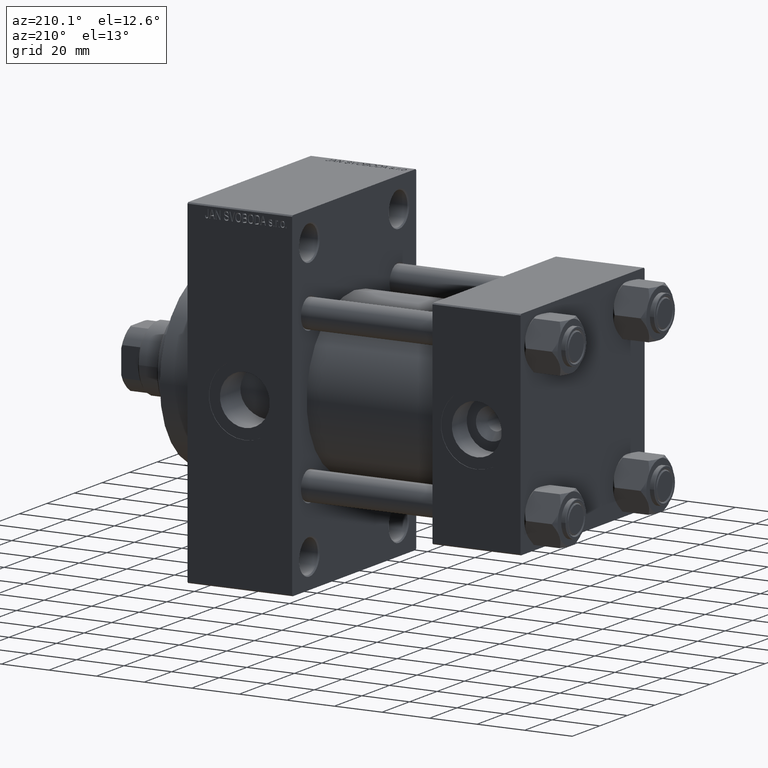
[diagram: clean part render]
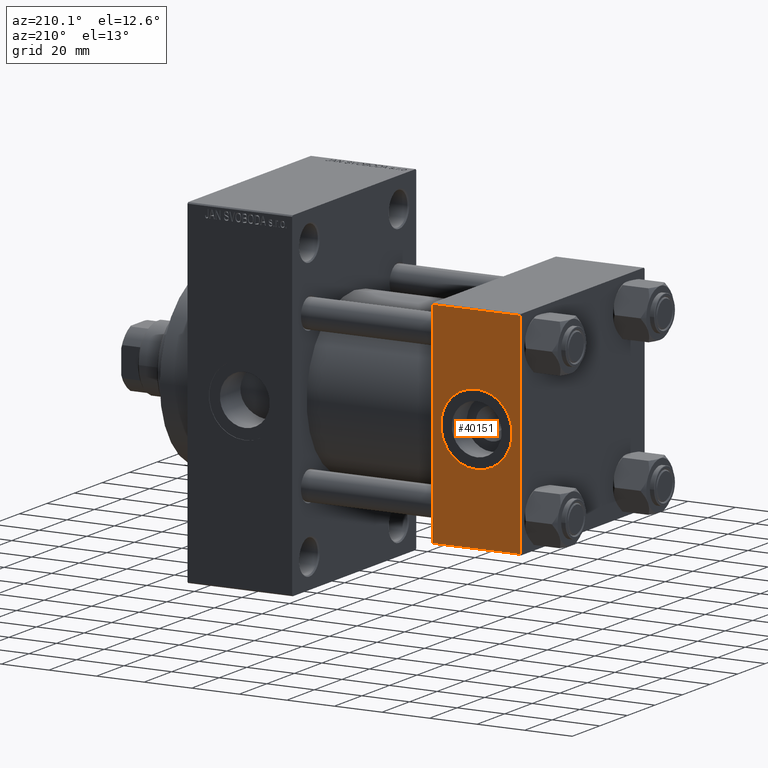
[diagram: same view with one face highlighted and labeled with its STEP entity id]
A machine part, auxiliary view. The second image highlights one B-rep face of the part: STEP entity #40151.
In plain terms, the highlighted planar face has unit normal (0, 1, 0).
Its self-contained STEP definition (entity closure, byte-faithful):
#344 = DIRECTION ( 'NONE',  ( -0.000000000000000000, 1.000000000000000000, 0.000000000000000000 ) ) ;
#749 = ORIENTED_EDGE ( 'NONE', *, *, #7182, .F. ) ;
#1436 = ORIENTED_EDGE ( 'NONE', *, *, #26943, .T. ) ;
#3136 = DIRECTION ( 'NONE',  ( 0.000000000000000000, 1.000000000000000000, 0.000000000000000000 ) ) ;
#3696 = VECTOR ( 'NONE', #26767, 1000.000000000000000 ) ;
#4540 = CARTESIAN_POINT ( 'NONE',  ( 37.00000000000000000, 44.99999999999998579, 45.00000000000001421 ) ) ;
#4918 = EDGE_CURVE ( 'NONE', #5685, #24752, #40130, .T. ) ;
#5167 = CIRCLE ( 'NONE', #39518, 15.00000000000000178 ) ;
#5215 = CARTESIAN_POINT ( 'NONE',  ( 0.000000000000000000, 44.99999999999998579, 44.50000000000001421 ) ) ;
#5685 = VERTEX_POINT ( 'NONE', #21297 ) ;
#6550 = DIRECTION ( 'NONE',  ( -1.000000000000000000, 0.000000000000000000, 0.000000000000000000 ) ) ;
#7042 = CARTESIAN_POINT ( 'NONE',  ( 37.00000000000000000, 44.99999999999998579, -44.49999999999998579 ) ) ;
#7182 = EDGE_CURVE ( 'NONE', #30749, #28216, #34270, .T. ) ;
#7786 = LINE ( 'NONE', #22523, #3696 ) ;
#8589 = DIRECTION ( 'NONE',  ( 0.000000000000000000, -0.000000000000000000, 1.000000000000000000 ) ) ;
#9556 = EDGE_CURVE ( 'NONE', #24752, #5685, #5167, .T. ) ;
#9661 = EDGE_LOOP ( 'NONE', ( #39809, #13189 ) ) ;
#10395 = EDGE_LOOP ( 'NONE', ( #43422, #41041, #749, #1436 ) ) ;
#13189 = ORIENTED_EDGE ( 'NONE', *, *, #9556, .F. ) ;
#14534 = EDGE_CURVE ( 'NONE', #41920, #28216, #44575, .T. ) ;
#14535 = CARTESIAN_POINT ( 'NONE',  ( 0.000000000000000000, 44.99999999999998579, 45.00000000000001421 ) ) ;
#14884 = CARTESIAN_POINT ( 'NONE',  ( 18.50000000000000000, 44.99999999999998579, 0.000000000000000000 ) ) ;
#21297 = CARTESIAN_POINT ( 'NONE',  ( 18.50000000000000000, 44.99999999999998579, 15.00000000000000178 ) ) ;
#22523 = CARTESIAN_POINT ( 'NONE',  ( 37.00000000000000000, 44.99999999999998579, 44.50000000000001421 ) ) ;
#23087 = CARTESIAN_POINT ( 'NONE',  ( 37.00000000000000000, 44.99999999999998579, 45.00000000000001421 ) ) ;
#24356 = VECTOR ( 'NONE', #6550, 1000.000000000000000 ) ;
#24562 = CARTESIAN_POINT ( 'NONE',  ( 0.000000000000000000, 44.99999999999998579, -44.49999999999995737 ) ) ;
#24752 = VERTEX_POINT ( 'NONE', #25534 ) ;
#24837 = EDGE_CURVE ( 'NONE', #33880, #41920, #27759, .T. ) ;
#25534 = CARTESIAN_POINT ( 'NONE',  ( 18.50000000000000355, 44.99999999999998579, -15.00000000000000178 ) ) ;
#26767 = DIRECTION ( 'NONE',  ( 1.000000000000000000, 0.000000000000000000, 0.000000000000000000 ) ) ;
#26943 = EDGE_CURVE ( 'NONE', #30749, #33880, #7786, .T. ) ;
#27759 = LINE ( 'NONE', #4540, #49201 ) ;
#28216 = VERTEX_POINT ( 'NONE', #24562 ) ;
#29715 = AXIS2_PLACEMENT_3D ( 'NONE', #34955, #46722, #42973 ) ;
#30260 = CARTESIAN_POINT ( 'NONE',  ( 37.00000000000000000, 44.99999999999998579, 44.50000000000001421 ) ) ;
#30509 = DIRECTION ( 'NONE',  ( 0.000000000000000000, 0.000000000000000000, -1.000000000000000000 ) ) ;
#30749 = VERTEX_POINT ( 'NONE', #5215 ) ;
#33880 = VERTEX_POINT ( 'NONE', #30260 ) ;
#34270 = LINE ( 'NONE', #14535, #37804 ) ;
#34589 = PLANE ( 'NONE',  #35977 ) ;
#34955 = CARTESIAN_POINT ( 'NONE',  ( 18.50000000000000000, 44.99999999999998579, 0.000000000000000000 ) ) ;
#35977 = AXIS2_PLACEMENT_3D ( 'NONE', #23087, #344, #8589 ) ;
#37804 = VECTOR ( 'NONE', #30509, 1000.000000000000000 ) ;
#38855 = FACE_BOUND ( 'NONE', #9661, .T. ) ;
#39518 = AXIS2_PLACEMENT_3D ( 'NONE', #14884, #3136, #44911 ) ;
#39809 = ORIENTED_EDGE ( 'NONE', *, *, #4918, .F. ) ;
#40130 = CIRCLE ( 'NONE', #29715, 15.00000000000000178 ) ;
#40151 = ADVANCED_FACE ( 'NONE', ( #38855, #42125 ), #34589, .T. ) ;
#41041 = ORIENTED_EDGE ( 'NONE', *, *, #14534, .T. ) ;
#41920 = VERTEX_POINT ( 'NONE', #42677 ) ;
#42125 = FACE_OUTER_BOUND ( 'NONE', #10395, .T. ) ;
#42677 = CARTESIAN_POINT ( 'NONE',  ( 37.00000000000000000, 44.99999999999998579, -44.49999999999995737 ) ) ;
#42973 = DIRECTION ( 'NONE',  ( 0.000000000000000000, 0.000000000000000000, 1.000000000000000000 ) ) ;
#43422 = ORIENTED_EDGE ( 'NONE', *, *, #24837, .T. ) ;
#44575 = LINE ( 'NONE', #7042, #24356 ) ;
#44911 = DIRECTION ( 'NONE',  ( 0.000000000000000000, 0.000000000000000000, 1.000000000000000000 ) ) ;
#46722 = DIRECTION ( 'NONE',  ( 0.000000000000000000, 1.000000000000000000, 0.000000000000000000 ) ) ;
#46798 = DIRECTION ( 'NONE',  ( 0.000000000000000000, 0.000000000000000000, -1.000000000000000000 ) ) ;
#49201 = VECTOR ( 'NONE', #46798, 1000.000000000000000 ) ;